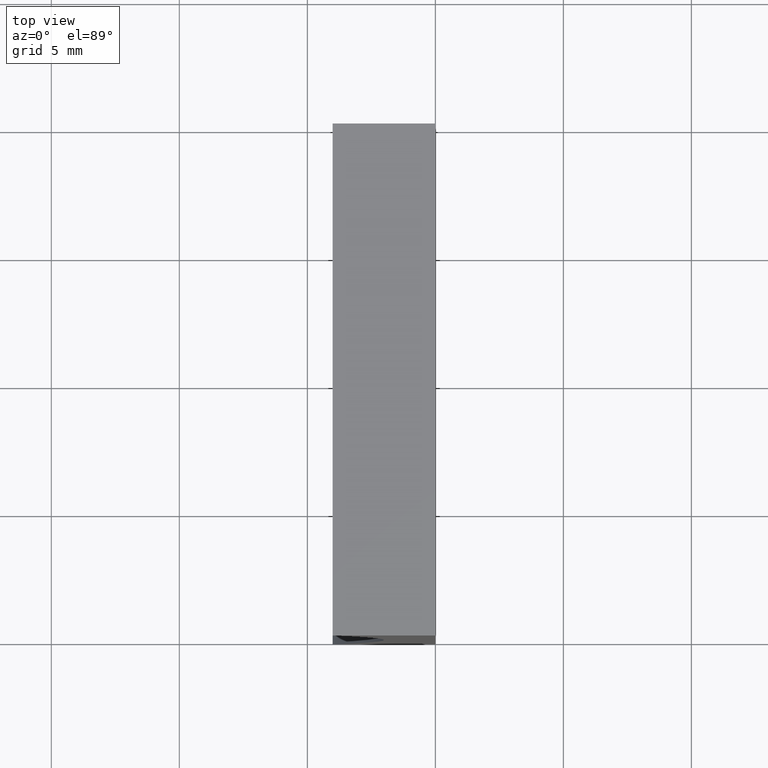
[diagram: clean part render]
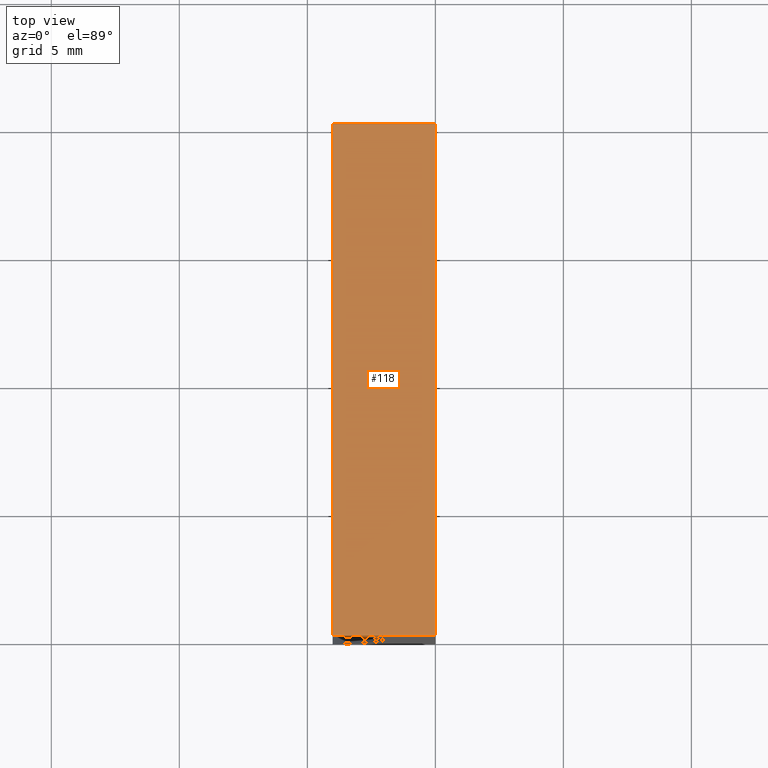
[diagram: same view with one face highlighted and labeled with its STEP entity id]
A machine part, top view. The second image highlights one B-rep face of the part: STEP entity #118.
In plain terms, the highlighted planar face has unit normal (0, 0, -1).
Its self-contained STEP definition (entity closure, byte-faithful):
#6 = VERTEX_POINT ( 'NONE', #92 ) ;
#7 = DIRECTION ( 'NONE',  ( 1.000000000000000000, -0.0000000000000000000, 8.646420205378973500E-016 ) ) ;
#16 = DIRECTION ( 'NONE',  ( -0.0000000000000000000, -1.000000000000000000, -0.0000000000000000000 ) ) ;
#17 = LINE ( 'NONE', #150, #190 ) ;
#20 = DIRECTION ( 'NONE',  ( -0.0000000000000000000, -1.000000000000000000, -0.0000000000000000000 ) ) ;
#33 = LINE ( 'NONE', #147, #172 ) ;
#34 = DIRECTION ( 'NONE',  ( -1.000000000000000000, 0.0000000000000000000, -8.646420205378973500E-016 ) ) ;
#47 = EDGE_LOOP ( 'NONE', ( #111, #49, #95, #184 ) ) ;
#49 = ORIENTED_EDGE ( 'NONE', *, *, #86, .F. ) ;
#59 = EDGE_CURVE ( 'NONE', #176, #135, #141, .T. ) ;
#66 = CARTESIAN_POINT ( 'NONE',  ( 1.224646799147353300E-015, 0.0000000000000000000, 20.00000000000000000 ) ) ;
#71 = PLANE ( 'NONE',  #188 ) ;
#86 = EDGE_CURVE ( 'NONE', #135, #107, #193, .T. ) ;
#92 = CARTESIAN_POINT ( 'NONE',  ( -4.012581935117213000, 0.0000000000000000000, 19.99999999999999600 ) ) ;
#95 = ORIENTED_EDGE ( 'NONE', *, *, #59, .F. ) ;
#107 = VERTEX_POINT ( 'NONE', #66 ) ;
#111 = ORIENTED_EDGE ( 'NONE', *, *, #115, .T. ) ;
#115 = EDGE_CURVE ( 'NONE', #6, #107, #33, .T. ) ;
#118 = ADVANCED_FACE ( 'NONE', ( #204 ), #71, .F. ) ;
#123 = DIRECTION ( 'NONE',  ( 1.000000000000000000, -0.0000000000000000000, 8.646420205378973500E-016 ) ) ;
#128 = DIRECTION ( 'NONE',  ( 8.646420205378973500E-016, 0.0000000000000000000, -1.000000000000000000 ) ) ;
#134 = VECTOR ( 'NONE', #123, 1000.000000000000000 ) ;
#135 = VERTEX_POINT ( 'NONE', #175 ) ;
#141 = LINE ( 'NONE', #143, #134 ) ;
#143 = CARTESIAN_POINT ( 'NONE',  ( 1.224646799147353300E-015, 20.00000000000000000, 20.00000000000000000 ) ) ;
#147 = CARTESIAN_POINT ( 'NONE',  ( 1.224646799147353300E-015, 0.0000000000000000000, 20.00000000000000000 ) ) ;
#150 = CARTESIAN_POINT ( 'NONE',  ( -4.012581935117213000, 20.00000000000000000, 19.99999999999999600 ) ) ;
#162 = EDGE_CURVE ( 'NONE', #176, #6, #17, .T. ) ;
#163 = VECTOR ( 'NONE', #20, 1000.000000000000000 ) ;
#167 = CARTESIAN_POINT ( 'NONE',  ( -4.012581935117213000, 20.00000000000000000, 19.99999999999999600 ) ) ;
#172 = VECTOR ( 'NONE', #7, 1000.000000000000000 ) ;
#175 = CARTESIAN_POINT ( 'NONE',  ( 1.224646799147353300E-015, 20.00000000000000000, 20.00000000000000000 ) ) ;
#176 = VERTEX_POINT ( 'NONE', #167 ) ;
#184 = ORIENTED_EDGE ( 'NONE', *, *, #162, .T. ) ;
#188 = AXIS2_PLACEMENT_3D ( 'NONE', #191, #128, #34 ) ;
#190 = VECTOR ( 'NONE', #16, 1000.000000000000000 ) ;
#191 = CARTESIAN_POINT ( 'NONE',  ( 1.224646799147353300E-015, 20.00000000000000000, 20.00000000000000000 ) ) ;
#193 = LINE ( 'NONE', #202, #163 ) ;
#202 = CARTESIAN_POINT ( 'NONE',  ( 1.224646799147353300E-015, 20.00000000000000000, 20.00000000000000000 ) ) ;
#204 = FACE_OUTER_BOUND ( 'NONE', #47, .T. ) ;